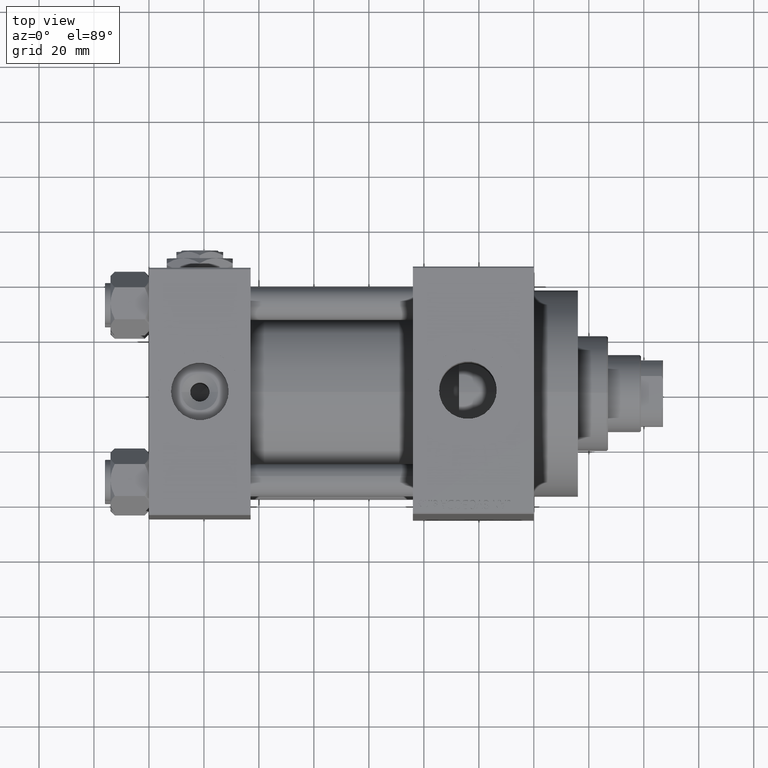
[diagram: clean part render]
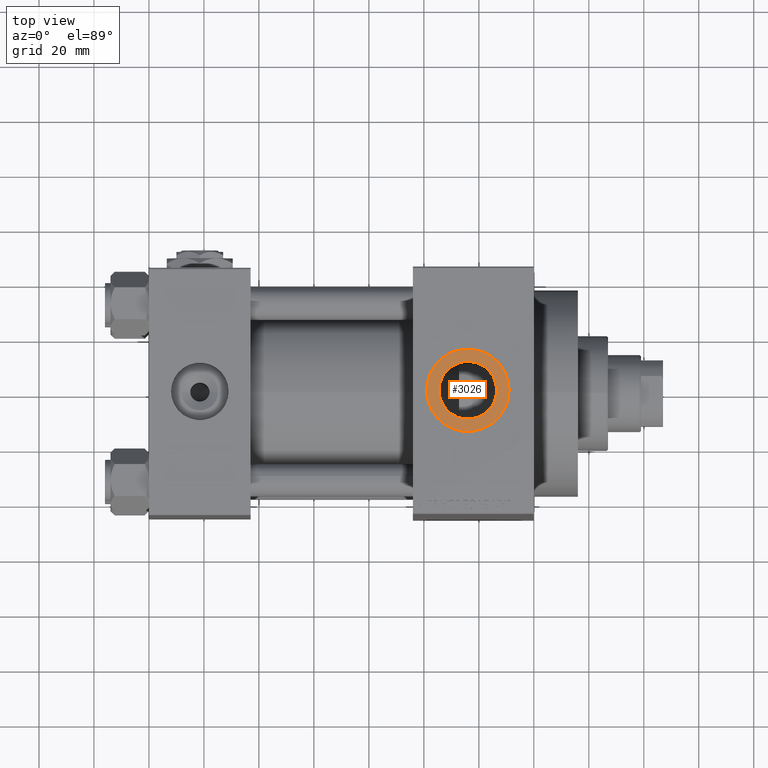
[diagram: same view with one face highlighted and labeled with its STEP entity id]
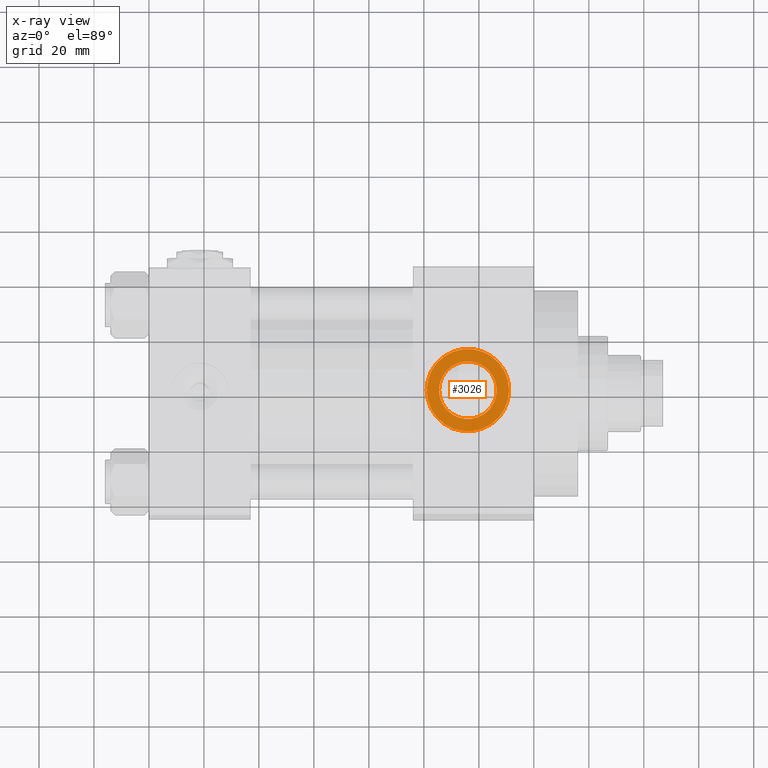
[diagram: x-ray of the same camera — body ghosted, the highlighted face saturated]
A machine part, top view. The second image highlights one B-rep face of the part: STEP entity #3026.
The next image is the same camera in x-ray: the body ghosted, the highlighted face saturated — about 0% of this face is hidden behind the body in this view.
In plain terms, the highlighted planar face has unit normal (0, 0, 1).
Its self-contained STEP definition (entity closure, byte-faithful):
#1601 = VERTEX_POINT ( 'NONE', #7355 ) ;
#3026 = ADVANCED_FACE ( 'NONE', ( #25913, #14526 ), #11052, .T. ) ;
#3119 = VERTEX_POINT ( 'NONE', #33826 ) ;
#4855 = DIRECTION ( 'NONE',  ( 1.000000000000000000, 0.000000000000000000, 0.000000000000000000 ) ) ;
#5174 = AXIS2_PLACEMENT_3D ( 'NONE', #21954, #25678, #36807 ) ;
#7050 = AXIS2_PLACEMENT_3D ( 'NONE', #45043, #29959, #11390 ) ;
#7355 = CARTESIAN_POINT ( 'NONE',  ( 100.9999999999999858, -9.111062405221482702E-15, 70.79999999999996874 ) ) ;
#8339 = CARTESIAN_POINT ( 'NONE',  ( 116.0000000000000000, -1.094803260394251466E-14, 70.79999999999996874 ) ) ;
#8642 = EDGE_LOOP ( 'NONE', ( #41927, #14989 ) ) ;
#11013 = CIRCLE ( 'NONE', #37920, 15.00000000000000000 ) ;
#11052 = PLANE ( 'NONE',  #5174 ) ;
#11348 = CARTESIAN_POINT ( 'NONE',  ( 131.0000000000000000, -1.094803260394251466E-14, 70.79999999999996874 ) ) ;
#11390 = DIRECTION ( 'NONE',  ( 1.000000000000000000, 0.000000000000000000, 0.000000000000000000 ) ) ;
#11566 = CARTESIAN_POINT ( 'NONE',  ( 116.0000000000000000, -1.094803260394251466E-14, 70.79999999999996874 ) ) ;
#14526 = FACE_OUTER_BOUND ( 'NONE', #45750, .T. ) ;
#14989 = ORIENTED_EDGE ( 'NONE', *, *, #30591, .T. ) ;
#18870 = CIRCLE ( 'NONE', #31611, 15.00000000000000000 ) ;
#20078 = VERTEX_POINT ( 'NONE', #46275 ) ;
#20674 = AXIS2_PLACEMENT_3D ( 'NONE', #11566, #27638, #31106 ) ;
#21004 = CARTESIAN_POINT ( 'NONE',  ( 116.0000000000000000, -1.094803260394251466E-14, 70.79999999999996874 ) ) ;
#21954 = CARTESIAN_POINT ( 'NONE',  ( 116.0000000000000000, -1.094803260394251466E-14, 70.79999999999996874 ) ) ;
#23144 = ORIENTED_EDGE ( 'NONE', *, *, #29241, .T. ) ;
#23440 = DIRECTION ( 'NONE',  ( 0.000000000000000000, 0.000000000000000000, 1.000000000000000000 ) ) ;
#24157 = EDGE_CURVE ( 'NONE', #3119, #20078, #35676, .T. ) ;
#25678 = DIRECTION ( 'NONE',  ( 0.000000000000000000, 0.000000000000000000, 1.000000000000000000 ) ) ;
#25688 = DIRECTION ( 'NONE',  ( 0.000000000000000000, 0.000000000000000000, 1.000000000000000000 ) ) ;
#25913 = FACE_BOUND ( 'NONE', #8642, .T. ) ;
#27246 = EDGE_CURVE ( 'NONE', #37956, #1601, #11013, .T. ) ;
#27638 = DIRECTION ( 'NONE',  ( -0.000000000000000000, -0.000000000000000000, -1.000000000000000000 ) ) ;
#29241 = EDGE_CURVE ( 'NONE', #1601, #37956, #18870, .T. ) ;
#29959 = DIRECTION ( 'NONE',  ( -0.000000000000000000, -0.000000000000000000, -1.000000000000000000 ) ) ;
#30591 = EDGE_CURVE ( 'NONE', #20078, #3119, #30791, .T. ) ;
#30791 = CIRCLE ( 'NONE', #7050, 10.48000000000000398 ) ;
#31106 = DIRECTION ( 'NONE',  ( 1.000000000000000000, 0.000000000000000000, 0.000000000000000000 ) ) ;
#31611 = AXIS2_PLACEMENT_3D ( 'NONE', #8339, #23440, #4855 ) ;
#32866 = DIRECTION ( 'NONE',  ( 1.000000000000000000, 0.000000000000000000, 0.000000000000000000 ) ) ;
#33826 = CARTESIAN_POINT ( 'NONE',  ( 105.5199999999999960, -1.094803260394251466E-14, 70.79999999999996874 ) ) ;
#35676 = CIRCLE ( 'NONE', #20674, 10.48000000000000398 ) ;
#36807 = DIRECTION ( 'NONE',  ( 1.000000000000000000, 0.000000000000000000, -0.000000000000000000 ) ) ;
#37920 = AXIS2_PLACEMENT_3D ( 'NONE', #21004, #25688, #32866 ) ;
#37956 = VERTEX_POINT ( 'NONE', #11348 ) ;
#41927 = ORIENTED_EDGE ( 'NONE', *, *, #24157, .T. ) ;
#43110 = ORIENTED_EDGE ( 'NONE', *, *, #27246, .T. ) ;
#45043 = CARTESIAN_POINT ( 'NONE',  ( 116.0000000000000000, -1.094803260394251466E-14, 70.79999999999996874 ) ) ;
#45750 = EDGE_LOOP ( 'NONE', ( #43110, #23144 ) ) ;
#46275 = CARTESIAN_POINT ( 'NONE',  ( 126.4800000000000040, -9.664602758436087591E-15, 70.79999999999996874 ) ) ;